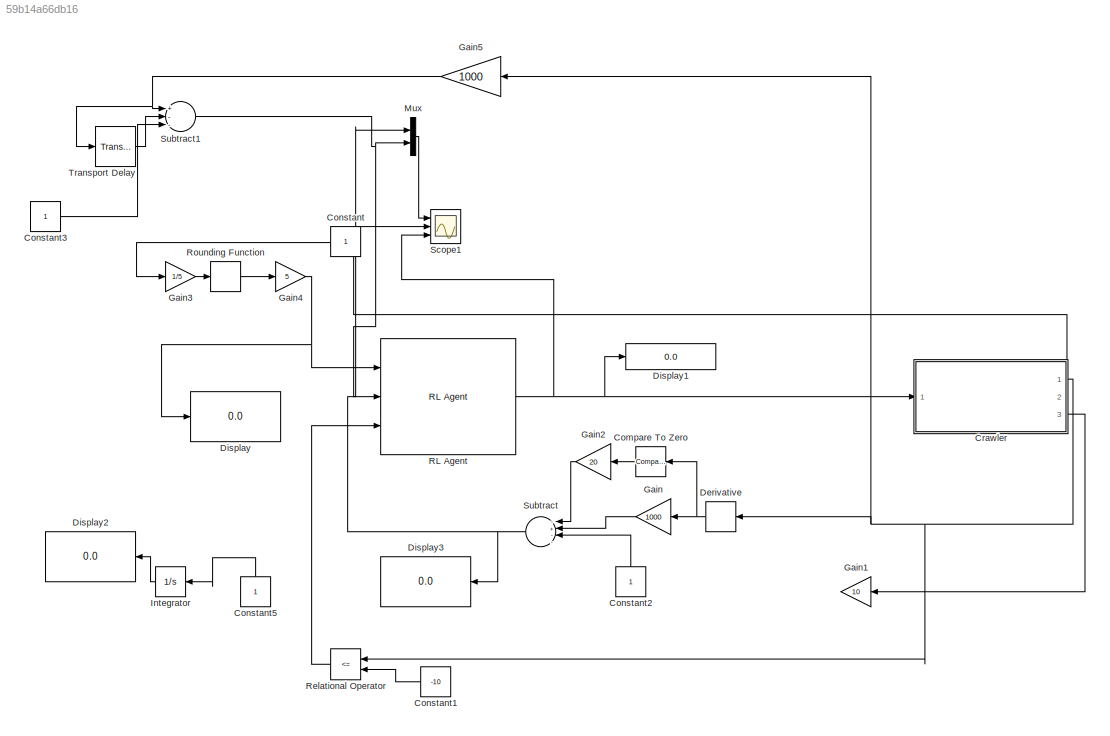
MODEL slx_59b14a66db16
KIND model
CONFIG AbsTol = auto
CONFIG EnableMultiTasking = on
CONFIG FixedStep = 0.00000001
CONFIG MaxStep = auto
CONFIG MinStep = auto
CONFIG RelTol = 1e-3
CONFIG SampleTimeConstraint = Unconstrained
CONFIG Solver = VariableStepAuto
CONFIG SolverName = VariableStepAuto
CONFIG StartTime = 0.0
CONFIG StopTime = Tf
BLOCK [Reference] Compare To Zero  REF=simulink/Logic and Bit
Operations/Compare
To Zero
  Ports = [1, 1]
  SourceBlock = simulink/Logic and Bit\nOperations/Compare\nTo Zero
  SourceProductBaseCode = SL
  SourceProductName = Simulink
  SourceType = Compare To Zero
BLOCK [Constant] Constant
  IOType = siggen
BLOCK [Constant] Constant1
  Value = -10
BLOCK [Constant] Constant2
BLOCK [Constant] Constant3
BLOCK [Constant] Constant5
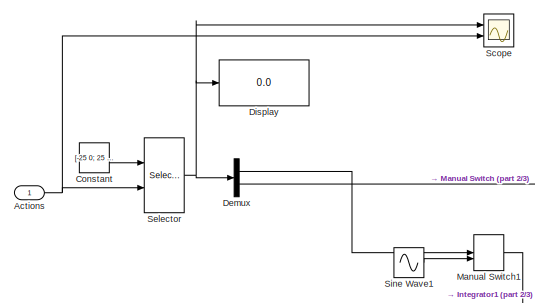
[diagram: Crawler - part 1/3, top left region]
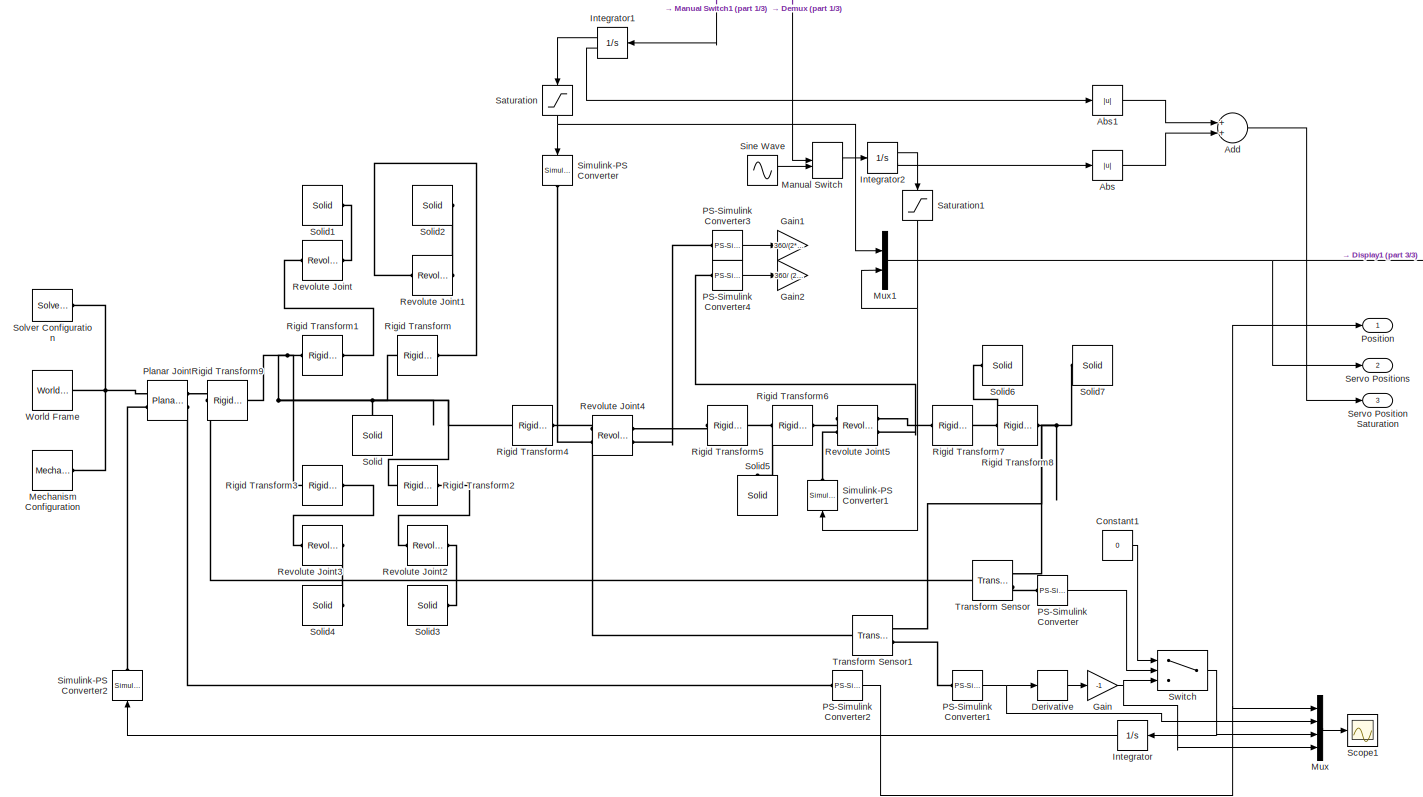
[diagram: Crawler - part 2/3, full width, middle band]
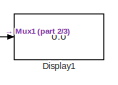
[diagram: Crawler - part 3/3, middle right region]
BLOCK [SubSystem] Crawler
  Ports = [1, 3]
  RequestExecContextInheritance = off
BLOCK [Abs] Crawler/Abs
  SaturateOnIntegerOverflow = off
BLOCK [Abs] Crawler/Abs1
  SaturateOnIntegerOverflow = off
BLOCK [Inport] Crawler/Actions
  IconDisplay = Port number
BLOCK [Sum] Crawler/Add
  InputSameDT = off
  OutDataTypeStr = Inherit: Inherit via internal rule
  Ports = [2, 1]
  SaturateOnIntegerOverflow = off
BLOCK [Constant] Crawler/Constant
  Value = [-25 0; 25 0; 0 -30; 0 30]
BLOCK [Constant] Crawler/Constant1
  Value = 0
BLOCK [Demux] Crawler/Demux
  DisplayOption = bar
  Outputs = 2
  Ports = [1, 2]
BLOCK [Derivative] Crawler/Derivative
BLOCK [Display] Crawler/Display
  Decimation = 1
  Ports = [1]
BLOCK [Display] Crawler/Display1
  Decimation = 1
  Ports = [1]
BLOCK [Gain] Crawler/Gain
  Gain = -1
  OutDataTypeStr = Inherit: Inherit via internal rule
  ParamDataTypeStr = Inherit: Inherit via internal rule
  SaturateOnIntegerOverflow = off
BLOCK [Gain] Crawler/Gain1
  Gain = 360/(2*pi)
  OutDataTypeStr = Inherit: Inherit via internal rule
  ParamDataTypeStr = Inherit: Inherit via internal rule
  SaturateOnIntegerOverflow = off
BLOCK [Gain] Crawler/Gain2
  Gain = 360/ (2*pi)
  OutDataTypeStr = Inherit: Inherit via internal rule
  ParamDataTypeStr = Inherit: Inherit via internal rule
  SaturateOnIntegerOverflow = off
BLOCK [Integrator] Crawler/Integrator
  Ports = [1, 1]
BLOCK [Integrator] Crawler/Integrator1
  InitialCondition = 10
  LimitOutput = on
  LowerSaturationLimit = -90
  Ports = [1, 2]
  ShowSaturationPort = on
  UpperSaturationLimit = 10
BLOCK [Integrator] Crawler/Integrator2
  InitialCondition = 60
  LimitOutput = on
  LowerSaturationLimit = -30
  Ports = [1, 2]
  ShowSaturationPort = on
  UpperSaturationLimit = 90
BLOCK [ManualSwitch] Crawler/Manual Switch
BLOCK [ManualSwitch] Crawler/Manual Switch1
BLOCK [Reference] Crawler/Mechanism Configuration  REF=sm_lib/Utilities/Mechanism
Configuration
  Ports = [0, 0, 0, 0, 0, 0, 1]
  SourceBlock = sm_lib/Utilities/Mechanism\nConfiguration
  SourceProductBaseCode = MS
  SourceProductName = Simscape Multibody
  SourceType = Mechanism\nConfiguration
BLOCK [Mux] Crawler/Mux
  DisplayOption = bar
  Ports = [4, 1]
BLOCK [Mux] Crawler/Mux1
  DisplayOption = bar
  Inputs = 2
  Ports = [2, 1]
BLOCK [Reference] Crawler/PS-Simulink Converter  REF=nesl_utility/PS-Simulink
Converter
  Ports = [0, 1, 0, 0, 0, 1]
  SourceBlock = nesl_utility/PS-Simulink\nConverter
  SourceProductBaseCode = SS
  SourceProductName = Simscape
  SourceType = PS-Simulink\nConverter
BLOCK [Reference] Crawler/PS-Simulink Converter1  REF=nesl_utility/PS-Simulink
Converter
  Ports = [0, 1, 0, 0, 0, 1]
  SourceBlock = nesl_utility/PS-Simulink\nConverter
  SourceProductBaseCode = SS
  SourceProductName = Simscape
  SourceType = PS-Simulink\nConverter
BLOCK [Reference] Crawler/PS-Simulink Converter2  REF=nesl_utility/PS-Simulink
Converter
  Ports = [0, 1, 0, 0, 0, 1]
  SourceBlock = nesl_utility/PS-Simulink\nConverter
  SourceProductBaseCode = SS
  SourceProductName = Simscape
  SourceType = PS-Simulink\nConverter
BLOCK [Reference] Crawler/PS-Simulink Converter3  REF=nesl_utility/PS-Simulink
Converter
  Ports = [0, 1, 0, 0, 0, 1]
  SourceBlock = nesl_utility/PS-Simulink\nConverter
  SourceProductBaseCode = SS
  SourceProductName = Simscape
  SourceType = PS-Simulink\nConverter
BLOCK [Reference] Crawler/PS-Simulink Converter4  REF=nesl_utility/PS-Simulink
Converter
  Ports = [0, 1, 0, 0, 0, 1]
  SourceBlock = nesl_utility/PS-Simulink\nConverter
  SourceProductBaseCode = SS
  SourceProductName = Simscape
  SourceType = PS-Simulink\nConverter
BLOCK [Reference] Crawler/Planar Joint  REF=sm_lib/Joints/Planar Joint
  Ports = [0, 0, 0, 0, 0, 2, 2]
  SourceBlock = sm_lib/Joints/Planar Joint
  SourceProductBaseCode = MS
  SourceProductName = Simscape Multibody
  SourceType = Planar Joint
BLOCK [Outport] Crawler/Position
  IconDisplay = Port number
BLOCK [Reference] Crawler/Revolute Joint  REF=sm_lib/Joints/Revolute Joint
  Ports = [0, 0, 0, 0, 0, 1, 1]
  SourceBlock = sm_lib/Joints/Revolute Joint
  SourceProductBaseCode = MS
  SourceProductName = Simscape Multibody
  SourceType = Revolute Joint
BLOCK [Reference] Crawler/Revolute Joint1  REF=sm_lib/Joints/Revolute Joint
  Ports = [0, 0, 0, 0, 0, 1, 1]
  SourceBlock = sm_lib/Joints/Revolute Joint
  SourceProductBaseCode = MS
  SourceProductName = Simscape Multibody
  SourceType = Revolute Joint
BLOCK [Reference] Crawler/Revolute Joint2  REF=sm_lib/Joints/Revolute Joint
  Ports = [0, 0, 0, 0, 0, 1, 1]
  SourceBlock = sm_lib/Joints/Revolute Joint
  SourceProductBaseCode = MS
  SourceProductName = Simscape Multibody
  SourceType = Revolute Joint
BLOCK [Reference] Crawler/Revolute Joint3  REF=sm_lib/Joints/Revolute Joint
  Ports = [0, 0, 0, 0, 0, 1, 1]
  SourceBlock = sm_lib/Joints/Revolute Joint
  SourceProductBaseCode = MS
  SourceProductName = Simscape Multibody
  SourceType = Revolute Joint
BLOCK [Reference] Crawler/Revolute Joint4  REF=sm_lib/Joints/Revolute Joint
  Ports = [0, 0, 0, 0, 0, 2, 2]
  SourceBlock = sm_lib/Joints/Revolute Joint
  SourceProductBaseCode = MS
  SourceProductName = Simscape Multibody
  SourceType = Revolute Joint
BLOCK [Reference] Crawler/Revolute Joint5  REF=sm_lib/Joints/Revolute Joint
  Ports = [0, 0, 0, 0, 0, 2, 2]
  SourceBlock = sm_lib/Joints/Revolute Joint
  SourceProductBaseCode = MS
  SourceProductName = Simscape Multibody
  SourceType = Revolute Joint
BLOCK [Reference] Crawler/Rigid Transform  REF=sm_lib/Frames and
Transforms/Rigid
Transform
  Ports = [0, 0, 0, 0, 0, 1, 1]
  SourceBlock = sm_lib/Frames and\nTransforms/Rigid\nTransform
  SourceProductBaseCode = MS
  SourceProductName = Simscape Multibody
  SourceType = Rigid\nTransform
BLOCK [Reference] Crawler/Rigid Transform1  REF=sm_lib/Frames and
Transforms/Rigid
Transform
  Ports = [0, 0, 0, 0, 0, 1, 1]
  SourceBlock = sm_lib/Frames and\nTransforms/Rigid\nTransform
  SourceProductBaseCode = MS
  SourceProductName = Simscape Multibody
  SourceType = Rigid\nTransform
BLOCK [Reference] Crawler/Rigid Transform2  REF=sm_lib/Frames and
Transforms/Rigid
Transform
  Ports = [0, 0, 0, 0, 0, 1, 1]
  SourceBlock = sm_lib/Frames and\nTransforms/Rigid\nTransform
  SourceProductBaseCode = MS
  SourceProductName = Simscape Multibody
  SourceType = Rigid\nTransform
BLOCK [Reference] Crawler/Rigid Transform3  REF=sm_lib/Frames and
Transforms/Rigid
Transform
  Ports = [0, 0, 0, 0, 0, 1, 1]
  SourceBlock = sm_lib/Frames and\nTransforms/Rigid\nTransform
  SourceProductBaseCode = MS
  SourceProductName = Simscape Multibody
  SourceType = Rigid\nTransform
BLOCK [Reference] Crawler/Rigid Transform4  REF=sm_lib/Frames and
Transforms/Rigid
Transform
  Ports = [0, 0, 0, 0, 0, 1, 1]
  SourceBlock = sm_lib/Frames and\nTransforms/Rigid\nTransform
  SourceProductBaseCode = MS
  SourceProductName = Simscape Multibody
  SourceType = Rigid\nTransform
BLOCK [Reference] Crawler/Rigid Transform5  REF=sm_lib/Frames and
Transforms/Rigid
Transform
  Ports = [0, 0, 0, 0, 0, 1, 1]
  SourceBlock = sm_lib/Frames and\nTransforms/Rigid\nTransform
  SourceProductBaseCode = MS
  SourceProductName = Simscape Multibody
  SourceType = Rigid\nTransform
BLOCK [Reference] Crawler/Rigid Transform6  REF=sm_lib/Frames and
Transforms/Rigid
Transform
  Ports = [0, 0, 0, 0, 0, 1, 1]
  SourceBlock = sm_lib/Frames and\nTransforms/Rigid\nTransform
  SourceProductBaseCode = MS
  SourceProductName = Simscape Multibody
  SourceType = Rigid\nTransform
BLOCK [Reference] Crawler/Rigid Transform7  REF=sm_lib/Frames and
Transforms/Rigid
Transform
  Ports = [0, 0, 0, 0, 0, 1, 1]
  SourceBlock = sm_lib/Frames and\nTransforms/Rigid\nTransform
  SourceProductBaseCode = MS
  SourceProductName = Simscape Multibody
  SourceType = Rigid\nTransform
BLOCK [Reference] Crawler/Rigid Transform8  REF=sm_lib/Frames and
Transforms/Rigid
Transform
  Ports = [0, 0, 0, 0, 0, 1, 1]
  SourceBlock = sm_lib/Frames and\nTransforms/Rigid\nTransform
  SourceProductBaseCode = MS
  SourceProductName = Simscape Multibody
  SourceType = Rigid\nTransform
BLOCK [Reference] Crawler/Rigid Transform9  REF=sm_lib/Frames and
Transforms/Rigid
Transform
  Ports = [0, 0, 0, 0, 0, 1, 1]
  SourceBlock = sm_lib/Frames and\nTransforms/Rigid\nTransform
  SourceProductBaseCode = MS
  SourceProductName = Simscape Multibody
  SourceType = Rigid\nTransform
BLOCK [Saturate] Crawler/Saturation
  Commented = through
  InputPortMap = u0
  LowerLimit = -90
  Ports = [1, 1]
  UpperLimit = 10
BLOCK [Saturate] Crawler/Saturation1
  Commented = through
  InputPortMap = u0
  LowerLimit = -90
  Ports = [1, 1]
  UpperLimit = 90
BLOCK [Scope] Crawler/Scope
  Floating = off
  NumInputPorts = 2
  Ports = [2]
  ScopeSpecificationString = Simulink.scopes.TimeScopeBlockCfg('CurrentConfiguration', extmgr.ConfigurationSet(extmgr.Configuration('Core','General UI',true),extmgr.Configuration('Core','Source UI',true),extmgr.Configuration('Sources','WiredSimulink',true,'DataLoggingVariableName','ScopeData1'),extmgr.Configuration('Visuals','Time Domain',true,'SerializedDisplays',{struct('MinYLimReal','-18.75','MaxYLimReal','18.75','YLabelRe...<+1974ch>
BLOCK [Scope] Crawler/Scope1
  Floating = off
  NumInputPorts = 1
  Ports = [1]
  ScopeSpecificationString = Simulink.scopes.TimeScopeBlockCfg('CurrentConfiguration', extmgr.ConfigurationSet(extmgr.Configuration('Core','General UI',true),extmgr.Configuration('Core','Source UI',true),extmgr.Configuration('Sources','WiredSimulink',true,'DataLoggingVariableName','ScopeData1'),extmgr.Configuration('Visuals','Time Domain',true,'SerializedDisplays',{struct('MinYLimReal','-0.09992','MaxYLimReal','0.16015','YLab...<+1469ch>
BLOCK [Selector] Crawler/Selector
  IndexOptions = Index vector (port),Select all
  Indices = [1 3],1
  InputPortWidth = 4
  NumberOfDimensions = 2
  OutputSizes = 1,1
  Ports = [2, 1]
BLOCK [Outport] Crawler/Servo Position Saturation
  IconDisplay = Port number
  Port = 3
BLOCK [Outport] Crawler/Servo Positions
  IconDisplay = Port number
  Port = 2
BLOCK [Reference] Crawler/Simulink-PS Converter  REF=nesl_utility/Simulink-PS
Converter
  Ports = [1, 0, 0, 0, 0, 0, 1]
  SourceBlock = nesl_utility/Simulink-PS\nConverter
  SourceProductBaseCode = SS
  SourceProductName = Simscape
  SourceType = Simulink-PS\nConverter
BLOCK [Reference] Crawler/Simulink-PS Converter1  REF=nesl_utility/Simulink-PS
Converter
  Ports = [1, 0, 0, 0, 0, 0, 1]
  SourceBlock = nesl_utility/Simulink-PS\nConverter
  SourceProductBaseCode = SS
  SourceProductName = Simscape
  SourceType = Simulink-PS\nConverter
BLOCK [Reference] Crawler/Simulink-PS Converter2  REF=nesl_utility/Simulink-PS
Converter
  Ports = [1, 0, 0, 0, 0, 0, 1]
  SourceBlock = nesl_utility/Simulink-PS\nConverter
  SourceProductBaseCode = SS
  SourceProductName = Simscape
  SourceType = Simulink-PS\nConverter
BLOCK [Sin] Crawler/Sine Wave
  Amplitude = 60
  Bias = 5
  Phase = pi
  Ports = [0, 1]
  SampleTime = 0
BLOCK [Sin] Crawler/Sine Wave1
  Amplitude = 40
  Bias = -10
  Phase = -pi/2
  Ports = [0, 1]
  SampleTime = 0
BLOCK [Reference] Crawler/Solid  REF=sm_lib/Body Elements/Solid
  Ports = [0, 0, 0, 0, 0, 0, 1]
  SourceBlock = sm_lib/Body Elements/Solid
  SourceProductBaseCode = MS
  SourceProductName = Simscape Multibody
  SourceType = Solid
BLOCK [Reference] Crawler/Solid1  REF=sm_lib/Body Elements/Solid
  Ports = [0, 0, 0, 0, 0, 0, 1]
  SourceBlock = sm_lib/Body Elements/Solid
  SourceProductBaseCode = MS
  SourceProductName = Simscape Multibody
  SourceType = Solid
BLOCK [Reference] Crawler/Solid2  REF=sm_lib/Body Elements/Solid
  Ports = [0, 0, 0, 0, 0, 0, 1]
  SourceBlock = sm_lib/Body Elements/Solid
  SourceProductBaseCode = MS
  SourceProductName = Simscape Multibody
  SourceType = Solid
BLOCK [Reference] Crawler/Solid3  REF=sm_lib/Body Elements/Solid
  Ports = [0, 0, 0, 0, 0, 0, 1]
  SourceBlock = sm_lib/Body Elements/Solid
  SourceProductBaseCode = MS
  SourceProductName = Simscape Multibody
  SourceType = Solid
BLOCK [Reference] Crawler/Solid4  REF=sm_lib/Body Elements/Solid
  Ports = [0, 0, 0, 0, 0, 0, 1]
  SourceBlock = sm_lib/Body Elements/Solid
  SourceProductBaseCode = MS
  SourceProductName = Simscape Multibody
  SourceType = Solid
BLOCK [Reference] Crawler/Solid5  REF=sm_lib/Body Elements/Solid
  Ports = [0, 0, 0, 0, 0, 0, 1]
  SourceBlock = sm_lib/Body Elements/Solid
  SourceProductBaseCode = MS
  SourceProductName = Simscape Multibody
  SourceType = Solid
BLOCK [Reference] Crawler/Solid6  REF=sm_lib/Body Elements/Solid
  Ports = [0, 0, 0, 0, 0, 0, 1]
  SourceBlock = sm_lib/Body Elements/Solid
  SourceProductBaseCode = MS
  SourceProductName = Simscape Multibody
  SourceType = Solid
BLOCK [Reference] Crawler/Solid7  REF=sm_lib/Body Elements/Solid
  Ports = [0, 0, 0, 0, 0, 0, 1]
  SourceBlock = sm_lib/Body Elements/Solid
  SourceProductBaseCode = MS
  SourceProductName = Simscape Multibody
  SourceType = Solid
BLOCK [Reference] Crawler/Solver Configuration  REF=nesl_utility/Solver
Configuration
  Ports = [0, 0, 0, 0, 0, 0, 1]
  SourceBlock = nesl_utility/Solver\nConfiguration
  SourceProductBaseCode = SS
  SourceProductName = Simscape
  SourceType = Solver\nConfiguration
BLOCK [Switch] Crawler/Switch
  InputSameDT = off
  SaturateOnIntegerOverflow = off
BLOCK [Reference] Crawler/Transform Sensor  REF=sm_lib/Frames and
Transforms/Transform
Sensor
  Ports = [0, 0, 0, 0, 0, 1, 2]
  SourceBlock = sm_lib/Frames and\nTransforms/Transform\nSensor
  SourceProductBaseCode = MS
  SourceProductName = Simscape Multibody
  SourceType = Transform\nSensor
BLOCK [Reference] Crawler/Transform Sensor1  REF=sm_lib/Frames and
Transforms/Transform
Sensor
  Ports = [0, 0, 0, 0, 0, 1, 2]
  SourceBlock = sm_lib/Frames and\nTransforms/Transform\nSensor
  SourceProductBaseCode = MS
  SourceProductName = Simscape Multibody
  SourceType = Transform\nSensor
BLOCK [Reference] Crawler/World Frame  REF=sm_lib/Frames and
Transforms/World Frame
  Ports = [0, 0, 0, 0, 0, 0, 1]
  SourceBlock = sm_lib/Frames and\nTransforms/World Frame
  SourceProductBaseCode = MS
  SourceProductName = Simscape Multibody
  SourceType = World Frame
BLOCK [Derivative] Derivative
BLOCK [Display] Display
  Decimation = 1
  Ports = [1]
BLOCK [Display] Display1
  Decimation = 1
  Ports = [1]
BLOCK [Display] Display2
  Decimation = 1
  Ports = [1]
BLOCK [Display] Display3
  Decimation = 1
  Ports = [1]
BLOCK [Gain] Gain
  Gain = 1000
  OutDataTypeStr = Inherit: Inherit via internal rule
  ParamDataTypeStr = Inherit: Inherit via internal rule
  SaturateOnIntegerOverflow = off
BLOCK [Gain] Gain1
  Commented = on
  Gain = 10
  OutDataTypeStr = Inherit: Inherit via internal rule
  ParamDataTypeStr = Inherit: Inherit via internal rule
  SaturateOnIntegerOverflow = off
BLOCK [Gain] Gain2
  Gain = 20
  OutDataTypeStr = Inherit: Inherit via internal rule
  ParamDataTypeStr = Inherit: Inherit via internal rule
  SaturateOnIntegerOverflow = off
BLOCK [Gain] Gain3
  Gain = 1/5
  OutDataTypeStr = Inherit: Inherit via internal rule
  ParamDataTypeStr = Inherit: Inherit via internal rule
  SaturateOnIntegerOverflow = off
BLOCK [Gain] Gain4
  Gain = 5
  OutDataTypeStr = Inherit: Inherit via internal rule
  ParamDataTypeStr = Inherit: Inherit via internal rule
  SaturateOnIntegerOverflow = off
BLOCK [Gain] Gain5
  Gain = 1000
  OutDataTypeStr = Inherit: Inherit via internal rule
  ParamDataTypeStr = Inherit: Inherit via internal rule
  SaturateOnIntegerOverflow = off
BLOCK [Integrator] Integrator
  Ports = [1, 1]
BLOCK [Mux] Mux
  DisplayOption = bar
  Inputs = 2
  Ports = [2, 1]
BLOCK [Reference] RL Agent  REF=rllib/RL Agent
  Ports = [3, 1]
  SourceBlock = rllib/RL Agent
  SourceProductBaseCode = RL
  SourceProductName = Reinforcement Learning Toolbox
  SourceType = RL Agent
BLOCK [RelationalOperator] Relational Operator
  InputSameDT = off
  Operator = <=
  OutDataTypeStr = boolean
  Ports = [2, 1]
  RndMeth = Simplest
BLOCK [Rounding] Rounding Function
  Operator = round
BLOCK [Scope] Scope1
  Floating = off
  NumInputPorts = 3
  Ports = [3]
  ScopeSpecificationString = Simulink.scopes.TimeScopeBlockCfg('CurrentConfiguration', extmgr.ConfigurationSet(extmgr.Configuration('Core','General UI',true),extmgr.Configuration('Core','Source UI',true),extmgr.Configuration('Sources','WiredSimulink',true,'DataLoggingVariableName','ScopeData2'),extmgr.Configuration('Visuals','Time Domain',true,'SerializedDisplays',{struct('MinYLimReal','-57.66908','MaxYLimReal','46.02845','YL...<+2848ch>
BLOCK [Sum] Subtract
  InputSameDT = off
  Inputs = -+--
  OutDataTypeStr = Inherit: Inherit via internal rule
  Ports = [4, 1]
  SaturateOnIntegerOverflow = off
BLOCK [Sum] Subtract1
  InputSameDT = off
  Inputs = +--
  OutDataTypeStr = Inherit: Inherit via internal rule
  Ports = [3, 1]
  SaturateOnIntegerOverflow = off
BLOCK [TransportDelay] Transport Delay
  DelayTime = Ts
  Ports = [1, 1]
LINE Compare To Zero:1 -> Gain2:1
LINE Constant1:1 -> Relational Operator:2
LINE Constant2:1 -> Subtract:3
LINE Constant3:1 -> Subtract1:3
LINE Constant5:1 -> Integrator:1
LINE Crawler/Abs1:1 -> Crawler/Add:1
LINE Crawler/Abs:1 -> Crawler/Add:2
NET Crawler/Actions:1 -> Crawler/Scope:2, Crawler/Selector:2
LINE Crawler/Add:1 -> Crawler/Servo Position Saturation:1
LINE Crawler/Constant1:1 -> Crawler/Switch:1
LINE Crawler/Constant:1 -> Crawler/Selector:1
LINE Crawler/Demux:1 -> Crawler/Manual Switch1:1
LINE Crawler/Demux:2 -> Crawler/Manual Switch:1
LINE Crawler/Derivative:1 -> Crawler/Gain:1
NET Crawler/Gain:1 -> Crawler/Mux:4, Crawler/Switch:3
LINE Crawler/Integrator1:1 -> Crawler/Saturation:1
LINE Crawler/Integrator1:2 -> Crawler/Abs1:1
LINE Crawler/Integrator2:1 -> Crawler/Saturation1:1
LINE Crawler/Integrator2:2 -> Crawler/Abs:1
LINE Crawler/Integrator:1 -> Crawler/Simulink-PS Converter2:1
LINE Crawler/Manual Switch1:1 -> Crawler/Integrator1:1
LINE Crawler/Manual Switch:1 -> Crawler/Integrator2:1
NET Crawler/Mux1:1 -> Crawler/Display1:1, Crawler/Servo Positions:1
LINE Crawler/Mux:1 -> Crawler/Scope1:1
NET Crawler/PS-Simulink Converter1:1 -> Crawler/Derivative:1, Crawler/Mux:2
NET Crawler/PS-Simulink Converter2:1 -> Crawler/Mux:1, Crawler/Position:1
LINE Crawler/PS-Simulink Converter3:1 -> Crawler/Gain1:1
LINE Crawler/PS-Simulink Converter4:1 -> Crawler/Gain2:1
LINE Crawler/PS-Simulink Converter:1 -> Crawler/Switch:2
NET Crawler/Saturation1:1 -> Crawler/Mux1:2, Crawler/Simulink-PS Converter1:1
NET Crawler/Saturation:1 -> Crawler/Mux1:1, Crawler/Simulink-PS Converter:1
NET Crawler/Selector:1 -> Crawler/Demux:1, Crawler/Display:1, Crawler/Scope:1
LINE Crawler/Sine Wave1:1 -> Crawler/Manual Switch1:2
LINE Crawler/Sine Wave:1 -> Crawler/Manual Switch:2
NET Crawler/Switch:1 -> Crawler/Integrator:1, Crawler/Mux:3
NET Crawler:1 -> Derivative:1, Gain5:1, Relational Operator:1
NET Crawler:2 -> Gain3:1, Scope1:2
LINE Crawler:3 -> Gain1:1
NET Derivative:1 -> Compare To Zero:1, Gain:1
LINE Gain2:1 -> Subtract:1
LINE Gain3:1 -> Rounding Function:1
NET Gain4:1 -> Display:1, RL Agent:1
NET Gain5:1 -> Subtract1:1, Transport Delay:1
LINE Gain:1 -> Subtract:2
LINE Integrator:1 -> Display2:1
LINE Mux:1 -> Scope1:1
NET RL Agent:1 -> Crawler:1, Display1:1, Scope1:3
LINE Relational Operator:1 -> RL Agent:3
LINE Rounding Function:1 -> Gain4:1
NET Subtract1:1 -> Mux:2, RL Agent:2
NET Subtract:1 -> Display3:1, Mux:1
LINE Transport Delay:1 -> Subtract1:2
PNET net1: Crawler/Mechanism Configuration:RConn1 -- Crawler/Planar Joint:LConn1 -- Crawler/Solver Configuration:RConn1 -- Crawler/World Frame:RConn1
PLINE Crawler/PS-Simulink Converter1:LConn1 -- Crawler/Transform Sensor1:RConn2
PLINE Crawler/PS-Simulink Converter2:LConn1 -- Crawler/Planar Joint:RConn2
PLINE Crawler/PS-Simulink Converter3:LConn1 -- Crawler/Revolute Joint4:RConn2
PLINE Crawler/PS-Simulink Converter4:LConn1 -- Crawler/Revolute Joint5:RConn2
PLINE Crawler/PS-Simulink Converter:LConn1 -- Crawler/Transform Sensor:RConn2
PLINE Crawler/Planar Joint:LConn2 -- Crawler/Simulink-PS Converter2:RConn1
PNET net2: Crawler/Planar Joint:RConn1 -- Crawler/Rigid Transform9:LConn1 -- Crawler/Transform Sensor:LConn1
PLINE Crawler/Revolute Joint1:LConn1 -- Crawler/Rigid Transform:RConn1
PLINE Crawler/Revolute Joint1:RConn1 -- Crawler/Solid2:RConn1
PLINE Crawler/Revolute Joint2:LConn1 -- Crawler/Rigid Transform2:RConn1
PLINE Crawler/Revolute Joint2:RConn1 -- Crawler/Solid3:RConn1
PLINE Crawler/Revolute Joint3:LConn1 -- Crawler/Rigid Transform3:RConn1
PLINE Crawler/Revolute Joint3:RConn1 -- Crawler/Solid4:RConn1
PNET net3: Crawler/Revolute Joint4:LConn1 -- Crawler/Rigid Transform4:RConn1 -- Crawler/Transform Sensor1:LConn1
PLINE Crawler/Revolute Joint4:LConn2 -- Crawler/Simulink-PS Converter:RConn1
PLINE Crawler/Revolute Joint4:RConn1 -- Crawler/Rigid Transform5:RConn1
PLINE Crawler/Revolute Joint5:LConn1 -- Crawler/Rigid Transform6:RConn1
PLINE Crawler/Revolute Joint5:LConn2 -- Crawler/Simulink-PS Converter1:RConn1
PLINE Crawler/Revolute Joint5:RConn1 -- Crawler/Rigid Transform7:RConn1
PLINE Crawler/Revolute Joint:LConn1 -- Crawler/Rigid Transform1:RConn1
PLINE Crawler/Revolute Joint:RConn1 -- Crawler/Solid1:RConn1
PNET net4: Crawler/Rigid Transform1:LConn1 -- Crawler/Rigid Transform2:LConn1 -- Crawler/Rigid Transform3:LConn1 -- Crawler/Rigid Transform4:LConn1 -- Crawler/Rigid Transform9:RConn1 -- Crawler/Rigid Transform:LConn1 -- Crawler/Solid:RConn1
PNET net5: Crawler/Rigid Transform5:LConn1 -- Crawler/Rigid Transform6:LConn1 -- Crawler/Solid5:RConn1
PNET net6: Crawler/Rigid Transform7:LConn1 -- Crawler/Rigid Transform8:LConn1 -- Crawler/Solid6:RConn1
PNET net7: Crawler/Rigid Transform8:RConn1 -- Crawler/Solid7:RConn1 -- Crawler/Transform Sensor1:RConn1 -- Crawler/Transform Sensor:RConn1
note: NET lines group one-source signal fan-out (src -> all destinations, sorted); 1:1 wires keep LINE; PNET lines group multi-terminal physical nets as a canonical sorted terminal list (undirected conserving connections); 2-terminal nets keep the pairwise PLINE form
